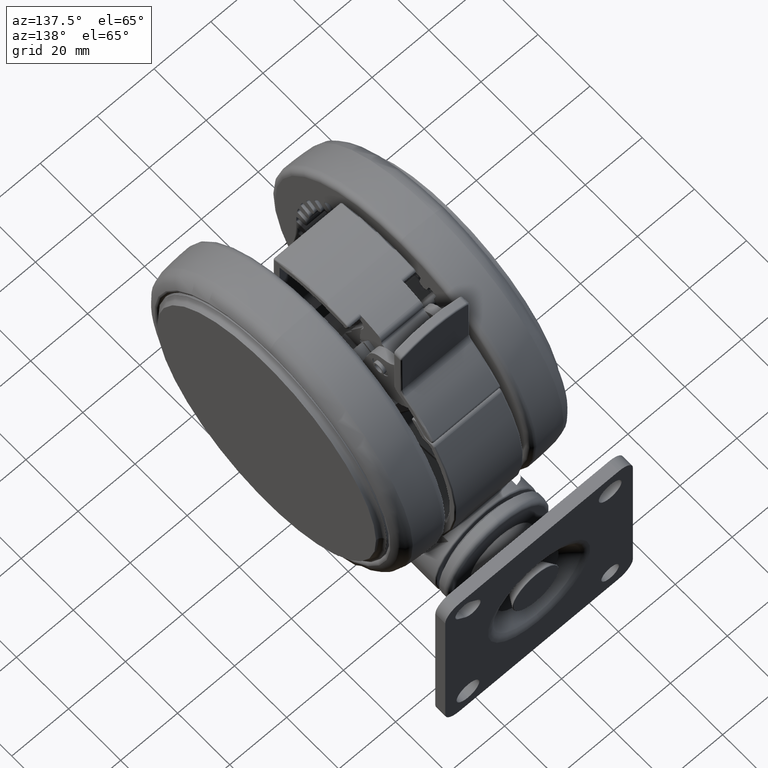
[diagram: clean part render]
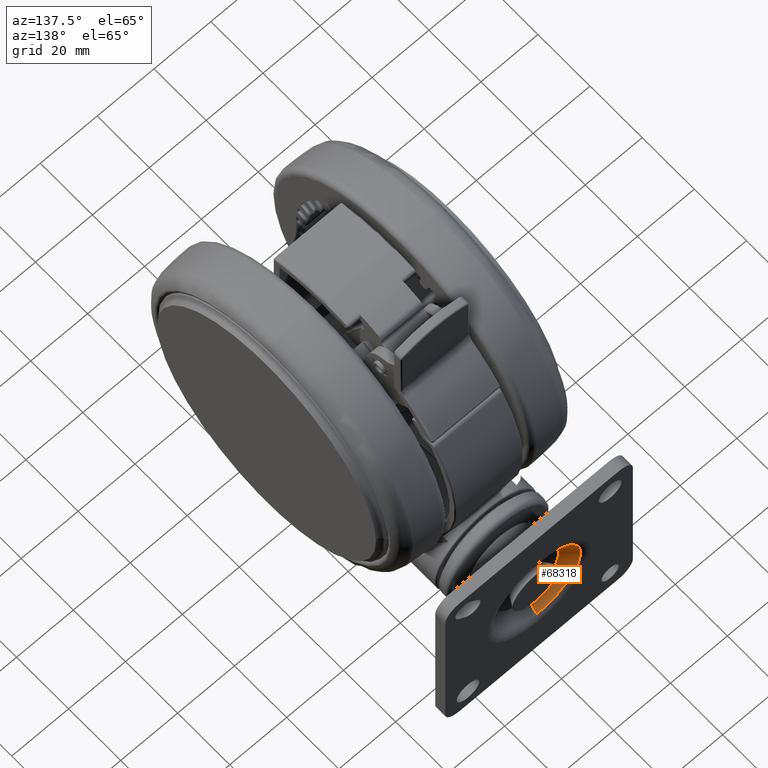
[diagram: same view with one face highlighted and labeled with its STEP entity id]
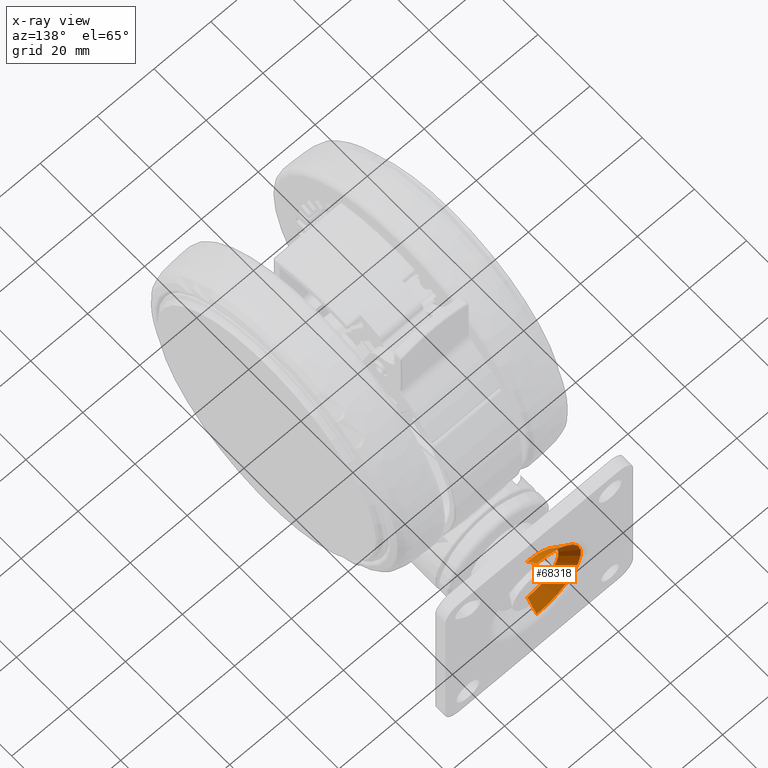
[diagram: x-ray of the same camera — body ghosted, the highlighted face saturated]
A machine part, auxiliary view. The second image highlights one B-rep face of the part: STEP entity #68318.
The next image is the same camera in x-ray: the body ghosted, the highlighted face saturated — about 0% of this face is hidden behind the body in this view.
In plain terms, the highlighted conical surface has half-angle 51.116 deg.
Its self-contained STEP definition (entity closure, byte-faithful):
#901 = CARTESIAN_POINT ( 'NONE',  ( -68.27645159511465100, 36.39084398456559900, -32.59999999999991600 ) ) ;
#1101 = EDGE_CURVE ( 'NONE', #39759, #69204, #81379, .T. ) ;
#2344 = DIRECTION ( 'NONE',  ( -0.6433952357347506600, -0.7655341733938627600, -9.532810372080178900E-017 ) ) ;
#4865 = AXIS2_PLACEMENT_3D ( 'NONE', #25055, #69825, #31464 ) ;
#13193 = DIRECTION ( 'NONE',  ( -0.9997947190500678900, 0.02026128721468431100, 3.697785493223492800E-032 ) ) ;
#13389 = VECTOR ( 'NONE', #2344, 1000.000000000000100 ) ;
#15192 = CARTESIAN_POINT ( 'NONE',  ( -68.61238373713411000, 19.81424754271547800, -32.59999999999991600 ) ) ;
#16792 = CARTESIAN_POINT ( 'NONE',  ( -67.70394924559313700, 20.89513470031171100, -32.59999999999991600 ) ) ;
#20225 = ORIENTED_EDGE ( 'NONE', *, *, #72699, .T. ) ;
#21036 = CARTESIAN_POINT ( 'NONE',  ( -63.77737535938929600, 36.29966819209952400, -32.59999999999991600 ) ) ;
#21412 = EDGE_CURVE ( 'NONE', #35412, #48277, #49379, .T. ) ;
#22757 = CARTESIAN_POINT ( 'NONE',  ( -63.55450120002777200, 47.29741010165029300, -32.59999999999991600 ) ) ;
#25055 = CARTESIAN_POINT ( 'NONE',  ( -67.39028570334282600, 36.37288543636472600, -32.59999999999991600 ) ) ;
#26327 = DIRECTION ( 'NONE',  ( 0.02026128721468412100, 0.9997947190500677800, 0.0000000000000000000 ) ) ;
#27450 = DIRECTION ( 'NONE',  ( 0.02026128721468380800, 0.9997947190500677800, 0.0000000000000000000 ) ) ;
#30007 = ORIENTED_EDGE ( 'NONE', *, *, #73421, .F. ) ;
#31464 = DIRECTION ( 'NONE',  ( -0.02026128721468073100, -0.9997947190500678900, 0.0000000000000000000 ) ) ;
#32335 = EDGE_LOOP ( 'NONE', ( #70568, #30007, #74709, #20225 ) ) ;
#33033 = CIRCLE ( 'NONE', #4865, 15.48092867579748100 ) ;
#35412 = VERTEX_POINT ( 'NONE', #68778 ) ;
#36460 = CARTESIAN_POINT ( 'NONE',  ( -67.07662216109250200, 51.85063617241785700, -32.59999999999991600 ) ) ;
#37340 = DIRECTION ( 'NONE',  ( -0.6118519354058207200, 0.7909723188204196300, 2.321293907345076900E-032 ) ) ;
#39759 = VERTEX_POINT ( 'NONE', #22757 ) ;
#48277 = VERTEX_POINT ( 'NONE', #16792 ) ;
#49379 = LINE ( 'NONE', #15192, #13389 ) ;
#57426 = AXIS2_PLACEMENT_3D ( 'NONE', #21036, #65856, #27450 ) ;
#64345 = VECTOR ( 'NONE', #37340, 1000.000000000000100 ) ;
#65856 = DIRECTION ( 'NONE',  ( -0.9997947190500678900, 0.02026128721468431100, 3.697785493223492800E-032 ) ) ;
#68318 = ADVANCED_FACE ( 'NONE', ( #81647 ), #79603, .F. ) ;
#68778 = CARTESIAN_POINT ( 'NONE',  ( -64.00024951875082000, 25.30192628254877700, -32.59999999999991600 ) ) ;
#69204 = VERTEX_POINT ( 'NONE', #36460 ) ;
#69425 = AXIS2_PLACEMENT_3D ( 'NONE', #901, #13193, #26327 ) ;
#69825 = DIRECTION ( 'NONE',  ( -0.9997947190500680000, 0.02026128721468082100, 3.697785493223492800E-032 ) ) ;
#70568 = ORIENTED_EDGE ( 'NONE', *, *, #21412, .F. ) ;
#72699 = EDGE_CURVE ( 'NONE', #69204, #48277, #33033, .T. ) ;
#73421 = EDGE_CURVE ( 'NONE', #39759, #35412, #83062, .T. ) ;
#74709 = ORIENTED_EDGE ( 'NONE', *, *, #1101, .T. ) ;
#75788 = CARTESIAN_POINT ( 'NONE',  ( -67.94051945309519200, 52.96744042641572700, -32.59999999999991600 ) ) ;
#79603 = CONICAL_SURFACE ( 'NONE', #69425, 16.58000000000000200, 0.8921338360465758100 ) ;
#81379 = LINE ( 'NONE', #75788, #64345 ) ;
#81647 = FACE_OUTER_BOUND ( 'NONE', #32335, .T. ) ;
#83062 = CIRCLE ( 'NONE', #57426, 11.00000000000000000 ) ;